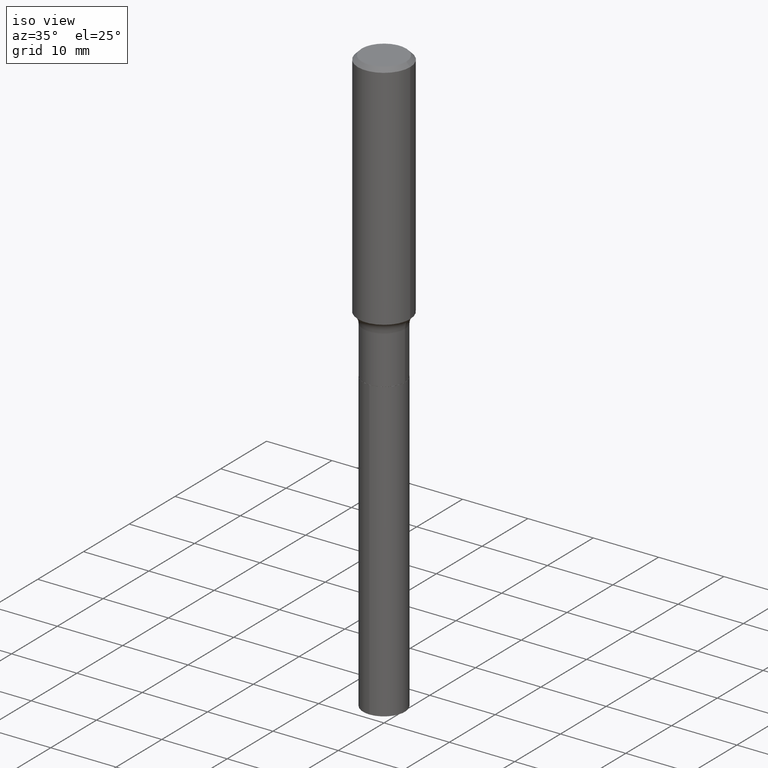
[diagram: clean part render]
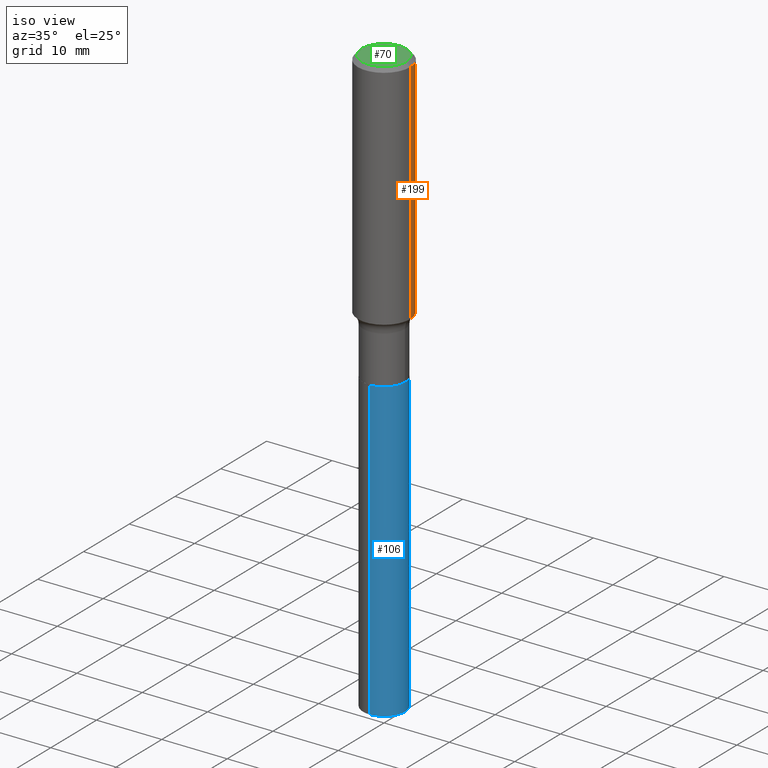
[diagram: same view with three faces highlighted in distinct colors, each labeled with its STEP entity id]
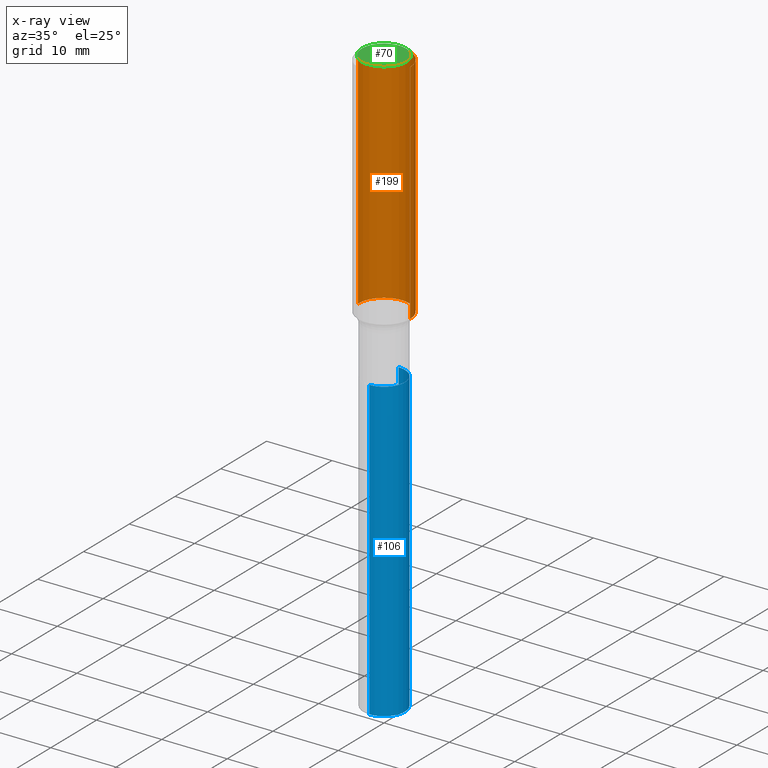
[diagram: x-ray of the same camera — body ghosted, the three highlighted faces saturated]
A machine part, iso view with three faces highlighted in distinct colors.
The next image is the same camera in x-ray (body ghosted, the three faces saturated) — at least one of them is partly hidden behind the body in this view.
Their STEP definitions:

[orange] entity #199 — the highlighted cylindrical surface (edge-blend (fillet) strip) has radius 4.0005 mm, axis along (-0, 0, 1).
#18 = AXIS2_PLACEMENT_3D ( 'NONE', #488, #238, #397 ) ;
#55 = LINE ( 'NONE', #230, #446 ) ;
#68 = DIRECTION ( 'NONE',  ( -2.445468806185136877E-29, 3.491481338843145188E-15, 1.000000000000000000 ) ) ;
#117 = EDGE_CURVE ( 'NONE', #361, #267, #213, .T. ) ;
#127 = VERTEX_POINT ( 'NONE', #200 ) ;
#128 = DIRECTION ( 'NONE',  ( -2.445468806185136597E-29, 3.491481338843145583E-15, 1.000000000000000000 ) ) ;
#135 = VECTOR ( 'NONE', #261, 39.37007874015748143 ) ;
#160 = VERTEX_POINT ( 'NONE', #162 ) ;
#162 = CARTESIAN_POINT ( 'NONE',  ( -0.1575000000000000011, -1.358626883343626114E-15, -0.02362500000000015282 ) ) ;
#163 = EDGE_CURVE ( 'NONE', #127, #160, #256, .T. ) ;
#179 = ORIENTED_EDGE ( 'NONE', *, *, #163, .F. ) ;
#199 = ADVANCED_FACE ( 'NONE', ( #277 ), #440, .T. ) ;
#200 = CARTESIAN_POINT ( 'NONE',  ( 0.1575000000000000011, -1.182302868365756679E-15, -0.02362500000000015282 ) ) ;
#203 = ORIENTED_EDGE ( 'NONE', *, *, #301, .T. ) ;
#209 = CARTESIAN_POINT ( 'NONE',  ( -0.1575000000000001954, -3.753872328879240830E-15, -1.395676122764555327 ) ) ;
#213 = CIRCLE ( 'NONE', #18, 0.1575000000000001676 ) ;
#230 = CARTESIAN_POINT ( 'NONE',  ( -0.1575000000000000844, 1.119104808822158392E-15, -7.747322767151481189E-30 ) ) ;
#238 = DIRECTION ( 'NONE',  ( -2.445468806185136597E-29, 3.491481338843145583E-15, 1.000000000000000000 ) ) ;
#245 = DIRECTION ( 'NONE',  ( 1.000000000000000000, -6.982962677686265922E-15, 0.000000000000000000 ) ) ;
#256 = CIRCLE ( 'NONE', #296, 0.1575000000000000011 ) ;
#261 = DIRECTION ( 'NONE',  ( -2.445468806185136877E-29, 3.491481338843145188E-15, 1.000000000000000000 ) ) ;
#267 = VERTEX_POINT ( 'NONE', #209 ) ;
#270 = EDGE_CURVE ( 'NONE', #361, #127, #371, .T. ) ;
#276 = ORIENTED_EDGE ( 'NONE', *, *, #270, .F. ) ;
#277 = FACE_OUTER_BOUND ( 'NONE', #322, .T. ) ;
#285 = DIRECTION ( 'NONE',  ( 1.000000000000000000, -6.982962677686267499E-15, 4.876176775795936353E-29 ) ) ;
#286 = AXIS2_PLACEMENT_3D ( 'NONE', #452, #404, #285 ) ;
#296 = AXIS2_PLACEMENT_3D ( 'NONE', #476, #128, #245 ) ;
#301 = EDGE_CURVE ( 'NONE', #267, #160, #55, .T. ) ;
#322 = EDGE_LOOP ( 'NONE', ( #485, #203, #179, #276 ) ) ;
#361 = VERTEX_POINT ( 'NONE', #471 ) ;
#371 = LINE ( 'NONE', #382, #135 ) ;
#382 = CARTESIAN_POINT ( 'NONE',  ( 0.1575000000000000844, -1.099816621735587677E-15, 7.679978421878603638E-30 ) ) ;
#397 = DIRECTION ( 'NONE',  ( 1.000000000000000000, -6.982962677686267499E-15, 0.000000000000000000 ) ) ;
#404 = DIRECTION ( 'NONE',  ( -2.445468806185136597E-29, 3.491481338843145583E-15, 1.000000000000000000 ) ) ;
#440 = CYLINDRICAL_SURFACE ( 'NONE', #286, 0.1575000000000000844 ) ;
#446 = VECTOR ( 'NONE', #68, 39.37007874015748143 ) ;
#452 = CARTESIAN_POINT ( 'NONE',  ( 0.000000000000000000, 0.000000000000000000, 0.000000000000000000 ) ) ;
#471 = CARTESIAN_POINT ( 'NONE',  ( 0.1575000000000001954, -5.972793759436989069E-15, -1.395676122764555327 ) ) ;
#476 = CARTESIAN_POINT ( 'NONE',  ( 5.777420054612421980E-31, -8.248624663016985234E-17, -0.02362500000000015282 ) ) ;
#485 = ORIENTED_EDGE ( 'NONE', *, *, #117, .T. ) ;
#488 = CARTESIAN_POINT ( 'NONE',  ( 3.413082421758137227E-29, -4.872977137701400011E-15, -1.395676122764555327 ) ) ;

[blue] entity #106 — the highlighted cylindrical surface (edge-blend (fillet) strip) has radius 3.2004 mm, axis along (-0, 0, 1).
#6 = VECTOR ( 'NONE', #140, 39.37007874015748143 ) ;
#29 = AXIS2_PLACEMENT_3D ( 'NONE', #373, #246, #134 ) ;
#33 = EDGE_CURVE ( 'NONE', #51, #409, #63, .T. ) ;
#34 = FACE_OUTER_BOUND ( 'NONE', #196, .T. ) ;
#35 = CARTESIAN_POINT ( 'NONE',  ( 8.952838470578126208E-16, 0.1259999999999875941, -3.542972352601249764 ) ) ;
#45 = CARTESIAN_POINT ( 'NONE',  ( 8.664284495484621704E-29, -1.237014147748660081E-14, -3.542972352601248875 ) ) ;
#49 = DIRECTION ( 'NONE',  ( -6.982962677686265922E-15, -1.000000000000000000, 4.336266656609941617E-15 ) ) ;
#51 = VERTEX_POINT ( 'NONE', #362 ) ;
#63 = CIRCLE ( 'NONE', #445, 0.1260000000000000009 ) ;
#64 = CARTESIAN_POINT ( 'NONE',  ( 8.952838470578130152E-16, 0.1259999999999939224, -1.748100000000000653 ) ) ;
#71 = ORIENTED_EDGE ( 'NONE', *, *, #424, .T. ) ;
#88 = LINE ( 'NONE', #385, #231 ) ;
#106 = ADVANCED_FACE ( 'NONE', ( #34 ), #294, .T. ) ;
#111 = ORIENTED_EDGE ( 'NONE', *, *, #33, .T. ) ;
#120 = LINE ( 'NONE', #396, #6 ) ;
#134 = DIRECTION ( 'NONE',  ( -6.982962677686265922E-15, -1.000000000000000000, 4.336266656609941617E-15 ) ) ;
#140 = DIRECTION ( 'NONE',  ( -2.445500076387621622E-29, 3.491436558133398134E-15, 1.000000000000000000 ) ) ;
#143 = EDGE_CURVE ( 'NONE', #433, #253, #416, .T. ) ;
#177 = DIRECTION ( 'NONE',  ( -6.982962677686265922E-15, -1.000000000000000000, 4.336266656609941617E-15 ) ) ;
#192 = CARTESIAN_POINT ( 'NONE',  ( -8.798532973884268532E-16, -0.1260000000000061071, -1.748099999999999543 ) ) ;
#196 = EDGE_LOOP ( 'NONE', ( #111, #71, #475, #325 ) ) ;
#231 = VECTOR ( 'NONE', #264, 39.37007874015748143 ) ;
#246 = DIRECTION ( 'NONE',  ( -2.445500076387621341E-29, 3.491436558133398134E-15, 1.000000000000000000 ) ) ;
#253 = VERTEX_POINT ( 'NONE', #64 ) ;
#264 = DIRECTION ( 'NONE',  ( -2.445500076387621622E-29, 3.491436558133398134E-15, 1.000000000000000000 ) ) ;
#294 = CYLINDRICAL_SURFACE ( 'NONE', #348, 0.1260000000000000009 ) ;
#325 = ORIENTED_EDGE ( 'NONE', *, *, #383, .F. ) ;
#338 = CARTESIAN_POINT ( 'NONE',  ( 4.274924020092237183E-29, -6.103458528431703746E-15, -1.748100000000000209 ) ) ;
#348 = AXIS2_PLACEMENT_3D ( 'NONE', #338, #459, #177 ) ;
#362 = CARTESIAN_POINT ( 'NONE',  ( -8.798532973883826770E-16, -0.1260000000000123521, -3.542972352601248431 ) ) ;
#373 = CARTESIAN_POINT ( 'NONE',  ( 4.274924020092237183E-29, -6.103458528431703746E-15, -1.748100000000000209 ) ) ;
#383 = EDGE_CURVE ( 'NONE', #51, #433, #120, .T. ) ;
#385 = CARTESIAN_POINT ( 'NONE',  ( 8.952838470577688390E-16, 0.1259999999999938947, -1.748100000000000653 ) ) ;
#387 = DIRECTION ( 'NONE',  ( -2.445500076387621341E-29, 3.491436558133398134E-15, 1.000000000000000000 ) ) ;
#396 = CARTESIAN_POINT ( 'NONE',  ( -8.798532973884268532E-16, -0.1260000000000061071, -1.748099999999999543 ) ) ;
#409 = VERTEX_POINT ( 'NONE', #35 ) ;
#416 = CIRCLE ( 'NONE', #29, 0.1260000000000000009 ) ;
#424 = EDGE_CURVE ( 'NONE', #409, #253, #88, .T. ) ;
#433 = VERTEX_POINT ( 'NONE', #192 ) ;
#445 = AXIS2_PLACEMENT_3D ( 'NONE', #45, #387, #49 ) ;
#459 = DIRECTION ( 'NONE',  ( -2.445500076387621341E-29, 3.491436558133398134E-15, 1.000000000000000000 ) ) ;
#475 = ORIENTED_EDGE ( 'NONE', *, *, #143, .F. ) ;

[green] entity #70 — the highlighted planar face has unit normal (0, -0, -1).
#48 = CARTESIAN_POINT ( 'NONE',  ( -1.002970424325033577E-46, 1.431975951230896486E-32, 4.101342130344485961E-18 ) ) ;
#70 = ADVANCED_FACE ( 'NONE', ( #380 ), #458, .F. ) ;
#78 = AXIS2_PLACEMENT_3D ( 'NONE', #48, #414, #172 ) ;
#90 = VERTEX_POINT ( 'NONE', #415 ) ;
#137 = CARTESIAN_POINT ( 'NONE',  ( -1.002970424325033577E-46, 1.431975951230896486E-32, 4.101342130344485961E-18 ) ) ;
#146 = CIRCLE ( 'NONE', #78, 0.1338749999999999940 ) ;
#172 = DIRECTION ( 'NONE',  ( 1.000000000000000000, -6.982962677686266711E-15, 4.876170806578254279E-29 ) ) ;
#222 = DIRECTION ( 'NONE',  ( -1.000000000000000000, 6.982962677686265922E-15, -4.876176775795935793E-29 ) ) ;
#229 = AXIS2_PLACEMENT_3D ( 'NONE', #413, #337, #222 ) ;
#244 = EDGE_CURVE ( 'NONE', #90, #344, #146, .T. ) ;
#252 = EDGE_CURVE ( 'NONE', #344, #90, #357, .T. ) ;
#260 = EDGE_LOOP ( 'NONE', ( #375, #311 ) ) ;
#289 = DIRECTION ( 'NONE',  ( -2.445468806185136597E-29, 3.491481338843145583E-15, 1.000000000000000000 ) ) ;
#311 = ORIENTED_EDGE ( 'NONE', *, *, #252, .T. ) ;
#337 = DIRECTION ( 'NONE',  ( 2.438088387897960049E-29, -3.491481338843145188E-15, -1.000000000000000000 ) ) ;
#344 = VERTEX_POINT ( 'NONE', #492 ) ;
#357 = CIRCLE ( 'NONE', #392, 0.1338749999999999940 ) ;
#375 = ORIENTED_EDGE ( 'NONE', *, *, #244, .T. ) ;
#380 = FACE_OUTER_BOUND ( 'NONE', #260, .T. ) ;
#392 = AXIS2_PLACEMENT_3D ( 'NONE', #137, #289, #451 ) ;
#413 = CARTESIAN_POINT ( 'NONE',  ( -5.014852121625167883E-47, 7.159879756154482429E-33, 2.050671065172242981E-18 ) ) ;
#414 = DIRECTION ( 'NONE',  ( -2.445468806185136597E-29, 3.491481338843145583E-15, 1.000000000000000000 ) ) ;
#415 = CARTESIAN_POINT ( 'NONE',  ( -0.1338749999999999940, 9.760872517903331886E-16, 4.101342130337804525E-18 ) ) ;
#451 = DIRECTION ( 'NONE',  ( 1.000000000000000000, -6.982962677686266711E-15, 4.876170806578254279E-29 ) ) ;
#458 = PLANE ( 'NONE',  #229 ) ;
#492 = CARTESIAN_POINT ( 'NONE',  ( 0.1338749999999999940, -1.040731925365424925E-15, 4.101342130351393887E-18 ) ) ;